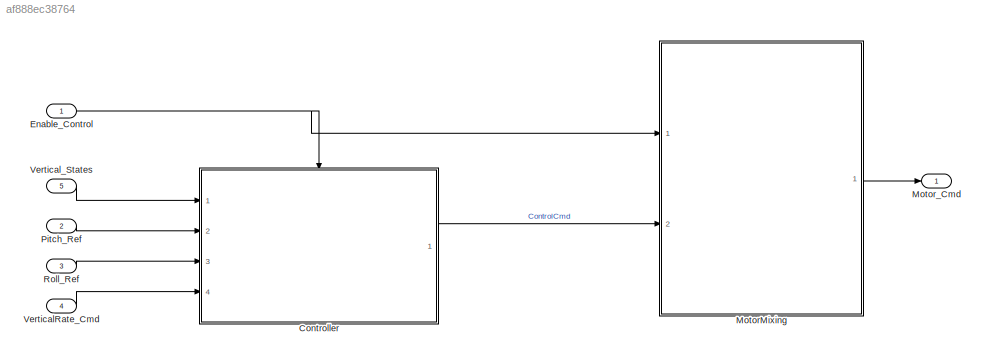
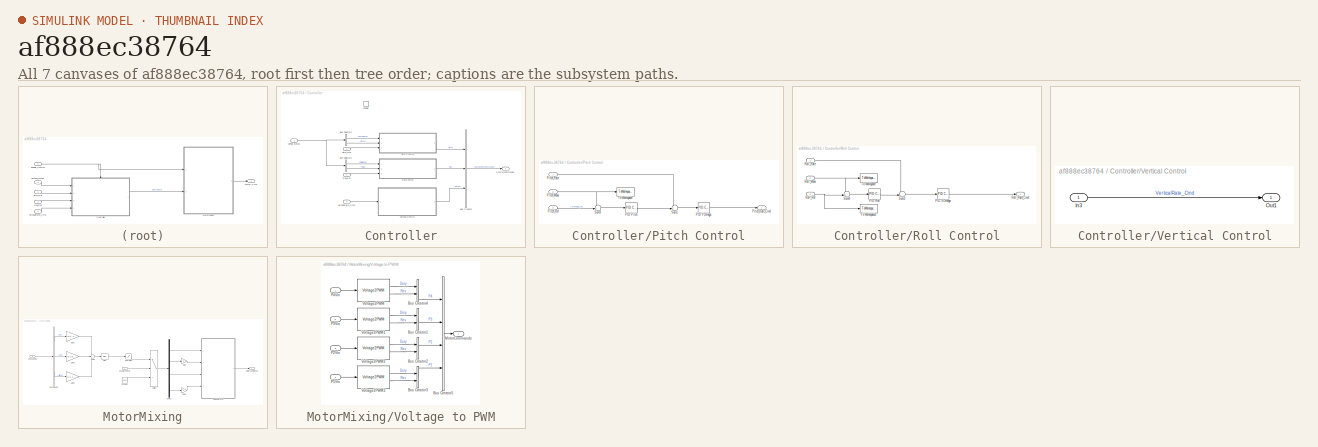
[diagram: thumbnail index - all 7 canvases of the model, root first then tree order]
MODEL slx_af888ec38764
KIND model
CONFIG AbsTol = auto
CONFIG EnableMultiTasking = on
CONFIG FixedStep = 1/100
CONFIG MaxStep = auto
CONFIG MinStep = auto
CONFIG RelTol = 1e-3
CONFIG SampleTimeConstraint = Unconstrained
CONFIG Solver = FixedStepDiscrete
CONFIG SolverName = FixedStepDiscrete
CONFIG StartTime = 0.0
CONFIG StopTime = 20
BLOCK [SubSystem] Controller
  Ports = [4, 1, 1]
  RequestExecContextInheritance = off
BLOCK [BusCreator] Controller/Bus Creator
  DisplayOption = bar
  InheritFromInputs = on
  Inputs = 3
  NonVirtualBus = on
  OutDataTypeStr = Bus: ControllerBus
  Ports = [3, 1]
BLOCK [BusSelector] Controller/Bus Selector1
  OutputAsBus = off
  OutputSignals = PitchRate,Pitch
  Ports = [1, 2]
BLOCK [BusSelector] Controller/Bus Selector2
  OutputAsBus = off
  OutputSignals = RollRate,Roll
  Ports = [1, 2]
BLOCK [Outport] Controller/Control commands
  IconDisplay = Port number
BLOCK [EnablePort] Controller/Enable
  Ports = []
BLOCK [SubSystem] Controller/Pitch Control
  Ports = [3, 1]
  RequestExecContextInheritance = off
BLOCK [Reference] Controller/Pitch Control/ PID Pitch  REF=simulink/Continuous/PID Controller
  Ports = [1, 1]
  SourceBlock = simulink/Continuous/PID Controller
  SourceProductBaseCode = SL
  SourceProductName = Simulink
  SourceType = PID 1dof
BLOCK [Reference] Controller/Pitch Control/PID YOmega  REF=simulink/Continuous/PID Controller
  Ports = [1, 1]
  SourceBlock = simulink/Continuous/PID Controller
  SourceProductBaseCode = SL
  SourceProductName = Simulink
  SourceType = PID 1dof
BLOCK [Inport] Controller/Pitch Control/Pitch_Meas
  IconDisplay = Port number
  Port = 2
BLOCK [Inport] Controller/Pitch Control/Pitch_Rate
  IconDisplay = Port number
BLOCK [Outport] Controller/Pitch Control/Pitch_Rate_Cmd
  IconDisplay = Port number
BLOCK [Inport] Controller/Pitch Control/Pitch_Ref
  IconDisplay = Port number
  Port = 3
BLOCK [Sum] Controller/Pitch Control/Sum1
  IconShape = round
  InputSameDT = off
  Inputs = -+|
  OutDataTypeStr = Inherit: Inherit via internal rule
  Ports = [2, 1]
  SaturateOnIntegerOverflow = off
BLOCK [Sum] Controller/Pitch Control/Sum9
  IconShape = round
  InputSameDT = off
  Inputs = -+|
  OutDataTypeStr = Inherit: Inherit via internal rule
  Ports = [2, 1]
  SaturateOnIntegerOverflow = off
BLOCK [ToWorkspace] Controller/Pitch Control/To Workspace
  FixptAsFi = on
  MaxDataPoints = inf
  Ports = [1]
  SampleTime = -1
  SaveFormat = Timeseries
  VariableName = pitch_meas
BLOCK [Inport] Controller/Pitch_Ref
  IconDisplay = Port number
  Port = 2
BLOCK [SubSystem] Controller/Roll Control
  Ports = [3, 1]
  RequestExecContextInheritance = off
BLOCK [Reference] Controller/Roll Control/ PID Roll  REF=simulink/Continuous/PID Controller
  Ports = [1, 1]
  SourceBlock = simulink/Continuous/PID Controller
  SourceProductBaseCode = SL
  SourceProductName = Simulink
  SourceType = PID 1dof
BLOCK [Reference] Controller/Roll Control/ PID XOmega  REF=simulink/Continuous/PID Controller
  Ports = [1, 1]
  SourceBlock = simulink/Continuous/PID Controller
  SourceProductBaseCode = SL
  SourceProductName = Simulink
  SourceType = PID 1dof
BLOCK [Inport] Controller/Roll Control/Roll_Meas
  IconDisplay = Port number
  Port = 2
BLOCK [Inport] Controller/Roll Control/Roll_Rate
  IconDisplay = Port number
BLOCK [Outport] Controller/Roll Control/Roll_Rate_Cmd
  IconDisplay = Port number
BLOCK [Inport] Controller/Roll Control/Roll_Ref
  IconDisplay = Port number
  Port = 3
BLOCK [Sum] Controller/Roll Control/Sum2
  IconShape = round
  InputSameDT = off
  Inputs = -+|
  OutDataTypeStr = Inherit: Inherit via internal rule
  Ports = [2, 1]
  SaturateOnIntegerOverflow = off
BLOCK [Sum] Controller/Roll Control/Sum8
  IconShape = round
  InputSameDT = off
  Inputs = -+|
  OutDataTypeStr = Inherit: Inherit via internal rule
  Ports = [2, 1]
  SaturateOnIntegerOverflow = off
BLOCK [ToWorkspace] Controller/Roll Control/To Workspace
  FixptAsFi = on
  MaxDataPoints = inf
  Ports = [1]
  SampleTime = -1
  SaveFormat = Timeseries
  VariableName = roll_meas
BLOCK [ToWorkspace] Controller/Roll Control/To Workspace1
  FixptAsFi = on
  MaxDataPoints = inf
  Ports = [1]
  SampleTime = -1
  SaveFormat = Timeseries
  VariableName = roll_ref
BLOCK [Inport] Controller/Roll_Ref
  IconDisplay = Port number
  Port = 3
BLOCK [Inport] Controller/Vehicle States
  IconDisplay = Port number
  OutDataTypeStr = Bus: NavigationStates
BLOCK [SubSystem] Controller/Vertical Control
  Ports = [1, 1]
  RequestExecContextInheritance = off
BLOCK [Inport] Controller/Vertical Control/In3
  IconDisplay = Port number
BLOCK [Outport] Controller/Vertical Control/Out1
  IconDisplay = Port number
BLOCK [Inport] Controller/VerticalRate_Cmd
  IconDisplay = Port number
  Port = 4
BLOCK [Inport] Enable_Control
  IconDisplay = Port number
  OutDataTypeStr = boolean
  PortDimensions = 1
  SampleTime = [0.01,0]
  SamplingMode = Sample based
  SignalType = real
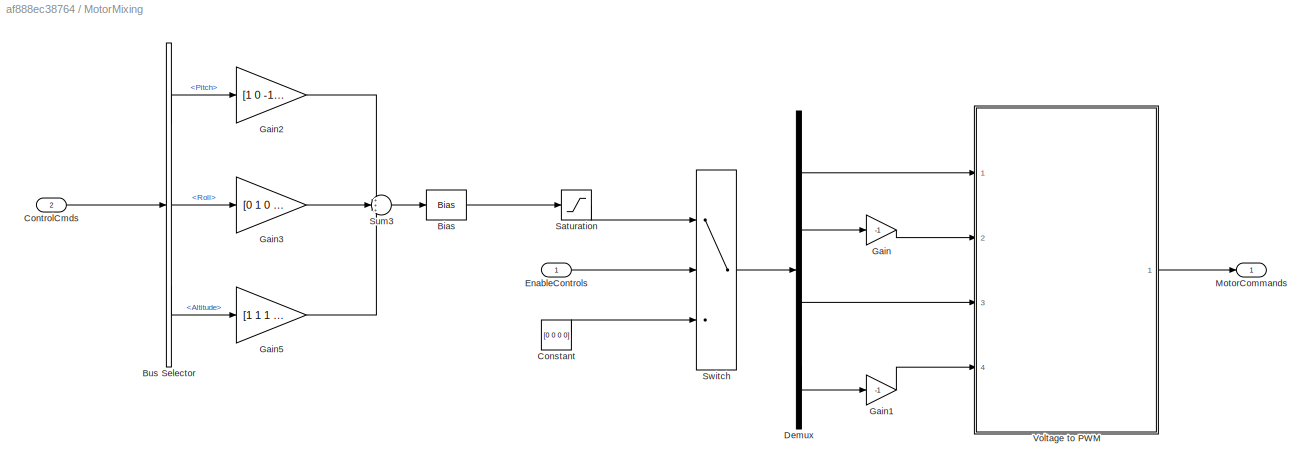
BLOCK [SubSystem] MotorMixing
  Ports = [2, 1]
  RequestExecContextInheritance = off
BLOCK [Bias] MotorMixing/Bias
  Bias = 0.1
  SaturateOnIntegerOverflow = off
BLOCK [BusSelector] MotorMixing/Bus Selector
  OutputAsBus = off
  OutputSignals = Pitch,Roll,Altitude
  Ports = [1, 3]
BLOCK [Constant] MotorMixing/Constant
  OutDataTypeStr = single
  Value = [0 0 0 0]
BLOCK [Inport] MotorMixing/ControlCmds
  IconDisplay = Port number
  OutDataTypeStr = Bus: ControllerBus
  Port = 2
BLOCK [Demux] MotorMixing/Demux
  DisplayOption = bar
  Ports = [1, 4]
BLOCK [Inport] MotorMixing/EnableControls
  IconDisplay = Port number
BLOCK [Gain] MotorMixing/Gain
  Gain = -1
  OutDataTypeStr = Inherit: Inherit via internal rule
  ParamDataTypeStr = Inherit: Inherit via internal rule
  SaturateOnIntegerOverflow = off
BLOCK [Gain] MotorMixing/Gain1
  Gain = -1
  OutDataTypeStr = Inherit: Inherit via internal rule
  ParamDataTypeStr = Inherit: Inherit via internal rule
  SaturateOnIntegerOverflow = off
BLOCK [Gain] MotorMixing/Gain2
  Gain = [1 0 -1 0]'
  OutDataTypeStr = Inherit: Inherit via internal rule
  ParamDataTypeStr = Inherit: Inherit via internal rule
  SaturateOnIntegerOverflow = off
BLOCK [Gain] MotorMixing/Gain3
  Gain = [0 1 0 -1]
  OutDataTypeStr = Inherit: Inherit via internal rule
  ParamDataTypeStr = Inherit: Inherit via internal rule
  SaturateOnIntegerOverflow = off
BLOCK [Gain] MotorMixing/Gain5
  Gain = [1 1 1 1]
  OutDataTypeStr = Inherit: Inherit via internal rule
  ParamDataTypeStr = Inherit: Inherit via internal rule
  SaturateOnIntegerOverflow = off
BLOCK [Outport] MotorMixing/MotorCommands
  IconDisplay = Port number
BLOCK [Saturate] MotorMixing/Saturation
  InputPortMap = u0
  LowerLimit = -4
  Ports = [1, 1]
  UpperLimit = 4
BLOCK [Sum] MotorMixing/Sum3
  IconShape = round
  InputSameDT = off
  Inputs = +++
  OutDataTypeStr = Inherit: Inherit via internal rule
  Ports = [3, 1]
  SaturateOnIntegerOverflow = off
BLOCK [Switch] MotorMixing/Switch
  Criteria = u2 ~= 0
  InputSameDT = off
  SaturateOnIntegerOverflow = off
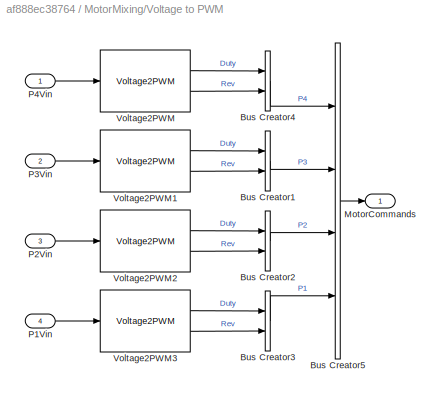
BLOCK [SubSystem] MotorMixing/Voltage to PWM
  Ports = [4, 1]
  RequestExecContextInheritance = off
BLOCK [BusCreator] MotorMixing/Voltage to PWM/Bus Creator1
  DisplayOption = bar
  InheritFromInputs = on
  Inputs = 2
  OutDataTypeStr = Bus: PWMBus
  Ports = [2, 1]
BLOCK [BusCreator] MotorMixing/Voltage to PWM/Bus Creator2
  DisplayOption = bar
  InheritFromInputs = on
  Inputs = 2
  OutDataTypeStr = Bus: PWMBus
  Ports = [2, 1]
BLOCK [BusCreator] MotorMixing/Voltage to PWM/Bus Creator3
  DisplayOption = bar
  InheritFromInputs = on
  Inputs = 2
  OutDataTypeStr = Bus: PWMBus
  Ports = [2, 1]
BLOCK [BusCreator] MotorMixing/Voltage to PWM/Bus Creator4
  DisplayOption = bar
  InheritFromInputs = on
  Inputs = 2
  OutDataTypeStr = Bus: PWMBus
  Ports = [2, 1]
BLOCK [BusCreator] MotorMixing/Voltage to PWM/Bus Creator5
  DisplayOption = bar
  InheritFromInputs = on
  Inputs = 4
  OutDataTypeStr = Bus: MotorCommands
  Ports = [4, 1]
BLOCK [Outport] MotorMixing/Voltage to PWM/MotorCommands
  IconDisplay = Port number
  OutDataTypeStr = Bus: MotorCommands
BLOCK [Inport] MotorMixing/Voltage to PWM/P1Vin
  IconDisplay = Port number
  Port = 4
BLOCK [Inport] MotorMixing/Voltage to PWM/P2Vin
  IconDisplay = Port number
  Port = 3
BLOCK [Inport] MotorMixing/Voltage to PWM/P3Vin
  IconDisplay = Port number
  Port = 2
BLOCK [Inport] MotorMixing/Voltage to PWM/P4Vin
  IconDisplay = Port number
BLOCK [Reference] MotorMixing/Voltage to PWM/Voltage2PWM  REF=Electrical_Library/Voltage2PWM
  Ports = [1, 2]
  SourceBlock = Electrical_Library/Voltage2PWM
  SourceType = SubSystem
BLOCK [Reference] MotorMixing/Voltage to PWM/Voltage2PWM1  REF=Electrical_Library/Voltage2PWM
  Ports = [1, 2]
  SourceBlock = Electrical_Library/Voltage2PWM
  SourceType = SubSystem
BLOCK [Reference] MotorMixing/Voltage to PWM/Voltage2PWM2  REF=Electrical_Library/Voltage2PWM
  Ports = [1, 2]
  SourceBlock = Electrical_Library/Voltage2PWM
  SourceType = SubSystem
BLOCK [Reference] MotorMixing/Voltage to PWM/Voltage2PWM3  REF=Electrical_Library/Voltage2PWM
  Ports = [1, 2]
  SourceBlock = Electrical_Library/Voltage2PWM
  SourceType = SubSystem
BLOCK [Outport] Motor_Cmd
  IconDisplay = Port number
  OutDataTypeStr = Bus: MotorCommands
BLOCK [Inport] Pitch_Ref
  IconDisplay = Port number
  OutDataTypeStr = single
  Port = 2
  PortDimensions = 1
  SampleTime = [0.01,0]
  SamplingMode = Sample based
  SignalType = real
BLOCK [Inport] Roll_Ref
  IconDisplay = Port number
  OutDataTypeStr = single
  Port = 3
  PortDimensions = 1
  SampleTime = [0.01,0]
  SamplingMode = Sample based
  SignalType = real
BLOCK [Inport] VerticalRate_Cmd
  IconDisplay = Port number
  OutDataTypeStr = single
  Port = 4
  PortDimensions = 1
  SampleTime = [0.01,0]
  SamplingMode = Sample based
  SignalType = real
BLOCK [Inport] Vertical_States
  BusOutputAsStruct = on
  IconDisplay = Port number
  OutDataTypeStr = Bus: NavigationStates
  Port = 5
  PortDimensions = 1
  SampleTime = [0.01,0]
LINE Controller/Bus Creator:1 -> Controller/Control commands:1
LINE Controller/Bus Selector1:1 -> Controller/Pitch Control:1
LINE Controller/Bus Selector1:2 -> Controller/Pitch Control:2
LINE Controller/Bus Selector2:1 -> Controller/Roll Control:1
LINE Controller/Bus Selector2:2 -> Controller/Roll Control:2
LINE Controller/Pitch Control/ PID Pitch:1 -> Controller/Pitch Control/Sum1:2
LINE Controller/Pitch Control/PID YOmega:1 -> Controller/Pitch Control/Pitch_Rate_Cmd:1
NET Controller/Pitch Control/Pitch_Meas:1 -> Controller/Pitch Control/Sum9:1, Controller/Pitch Control/To Workspace:1
LINE Controller/Pitch Control/Pitch_Rate:1 -> Controller/Pitch Control/Sum1:1
LINE Controller/Pitch Control/Pitch_Ref:1 -> Controller/Pitch Control/Sum9:2
LINE Controller/Pitch Control/Sum1:1 -> Controller/Pitch Control/PID YOmega:1
LINE Controller/Pitch Control/Sum9:1 -> Controller/Pitch Control/ PID Pitch:1
LINE Controller/Pitch Control:1 -> Controller/Bus Creator:1
LINE Controller/Pitch_Ref:1 -> Controller/Pitch Control:3
LINE Controller/Roll Control/ PID Roll:1 -> Controller/Roll Control/Sum2:2
LINE Controller/Roll Control/ PID XOmega:1 -> Controller/Roll Control/Roll_Rate_Cmd:1
NET Controller/Roll Control/Roll_Meas:1 -> Controller/Roll Control/Sum8:1, Controller/Roll Control/To Workspace:1
LINE Controller/Roll Control/Roll_Rate:1 -> Controller/Roll Control/Sum2:1
NET Controller/Roll Control/Roll_Ref:1 -> Controller/Roll Control/Sum8:2, Controller/Roll Control/To Workspace1:1
LINE Controller/Roll Control/Sum2:1 -> Controller/Roll Control/ PID XOmega:1
LINE Controller/Roll Control/Sum8:1 -> Controller/Roll Control/ PID Roll:1
LINE Controller/Roll Control:1 -> Controller/Bus Creator:2
LINE Controller/Roll_Ref:1 -> Controller/Roll Control:3
NET Controller/Vehicle States:1 -> Controller/Bus Selector1:1, Controller/Bus Selector2:1
LINE Controller/Vertical Control/In3:1 -> Controller/Vertical Control/Out1:1
LINE Controller/Vertical Control:1 -> Controller/Bus Creator:3
LINE Controller/VerticalRate_Cmd:1 -> Controller/Vertical Control:1
LINE Controller:1 -> MotorMixing:2
NET Enable_Control:1 -> Controller:enable, MotorMixing:1
LINE MotorMixing/Bias:1 -> MotorMixing/Saturation:1
LINE MotorMixing/Bus Selector:1 -> MotorMixing/Gain2:1
LINE MotorMixing/Bus Selector:2 -> MotorMixing/Gain3:1
LINE MotorMixing/Bus Selector:3 -> MotorMixing/Gain5:1
LINE MotorMixing/Constant:1 -> MotorMixing/Switch:3
LINE MotorMixing/ControlCmds:1 -> MotorMixing/Bus Selector:1
LINE MotorMixing/Demux:1 -> MotorMixing/Voltage to PWM:1
LINE MotorMixing/Demux:2 -> MotorMixing/Gain:1
LINE MotorMixing/Demux:3 -> MotorMixing/Voltage to PWM:3
LINE MotorMixing/Demux:4 -> MotorMixing/Gain1:1
LINE MotorMixing/EnableControls:1 -> MotorMixing/Switch:2
LINE MotorMixing/Gain1:1 -> MotorMixing/Voltage to PWM:4
LINE MotorMixing/Gain2:1 -> MotorMixing/Sum3:1
LINE MotorMixing/Gain3:1 -> MotorMixing/Sum3:2
LINE MotorMixing/Gain5:1 -> MotorMixing/Sum3:3
LINE MotorMixing/Gain:1 -> MotorMixing/Voltage to PWM:2
LINE MotorMixing/Saturation:1 -> MotorMixing/Switch:1
LINE MotorMixing/Sum3:1 -> MotorMixing/Bias:1
LINE MotorMixing/Switch:1 -> MotorMixing/Demux:1
LINE MotorMixing/Voltage to PWM/Bus Creator1:1 -> MotorMixing/Voltage to PWM/Bus Creator5:2
LINE MotorMixing/Voltage to PWM/Bus Creator2:1 -> MotorMixing/Voltage to PWM/Bus Creator5:3
LINE MotorMixing/Voltage to PWM/Bus Creator3:1 -> MotorMixing/Voltage to PWM/Bus Creator5:4
LINE MotorMixing/Voltage to PWM/Bus Creator4:1 -> MotorMixing/Voltage to PWM/Bus Creator5:1
LINE MotorMixing/Voltage to PWM/Bus Creator5:1 -> MotorMixing/Voltage to PWM/MotorCommands:1
LINE MotorMixing/Voltage to PWM/P1Vin:1 -> MotorMixing/Voltage to PWM/Voltage2PWM3:1
LINE MotorMixing/Voltage to PWM/P2Vin:1 -> MotorMixing/Voltage to PWM/Voltage2PWM2:1
LINE MotorMixing/Voltage to PWM/P3Vin:1 -> MotorMixing/Voltage to PWM/Voltage2PWM1:1
LINE MotorMixing/Voltage to PWM/P4Vin:1 -> MotorMixing/Voltage to PWM/Voltage2PWM:1
LINE MotorMixing/Voltage to PWM/Voltage2PWM1:1 -> MotorMixing/Voltage to PWM/Bus Creator1:1
LINE MotorMixing/Voltage to PWM/Voltage2PWM1:2 -> MotorMixing/Voltage to PWM/Bus Creator1:2
LINE MotorMixing/Voltage to PWM/Voltage2PWM2:1 -> MotorMixing/Voltage to PWM/Bus Creator2:1
LINE MotorMixing/Voltage to PWM/Voltage2PWM2:2 -> MotorMixing/Voltage to PWM/Bus Creator2:2
LINE MotorMixing/Voltage to PWM/Voltage2PWM3:1 -> MotorMixing/Voltage to PWM/Bus Creator3:1
LINE MotorMixing/Voltage to PWM/Voltage2PWM3:2 -> MotorMixing/Voltage to PWM/Bus Creator3:2
LINE MotorMixing/Voltage to PWM/Voltage2PWM:1 -> MotorMixing/Voltage to PWM/Bus Creator4:1
LINE MotorMixing/Voltage to PWM/Voltage2PWM:2 -> MotorMixing/Voltage to PWM/Bus Creator4:2
LINE MotorMixing/Voltage to PWM:1 -> MotorMixing/MotorCommands:1
LINE MotorMixing:1 -> Motor_Cmd:1
LINE Pitch_Ref:1 -> Controller:2
LINE Roll_Ref:1 -> Controller:3
LINE VerticalRate_Cmd:1 -> Controller:4
LINE Vertical_States:1 -> Controller:1
note: NET lines group one-source signal fan-out (src -> all destinations, sorted); 1:1 wires keep LINE
